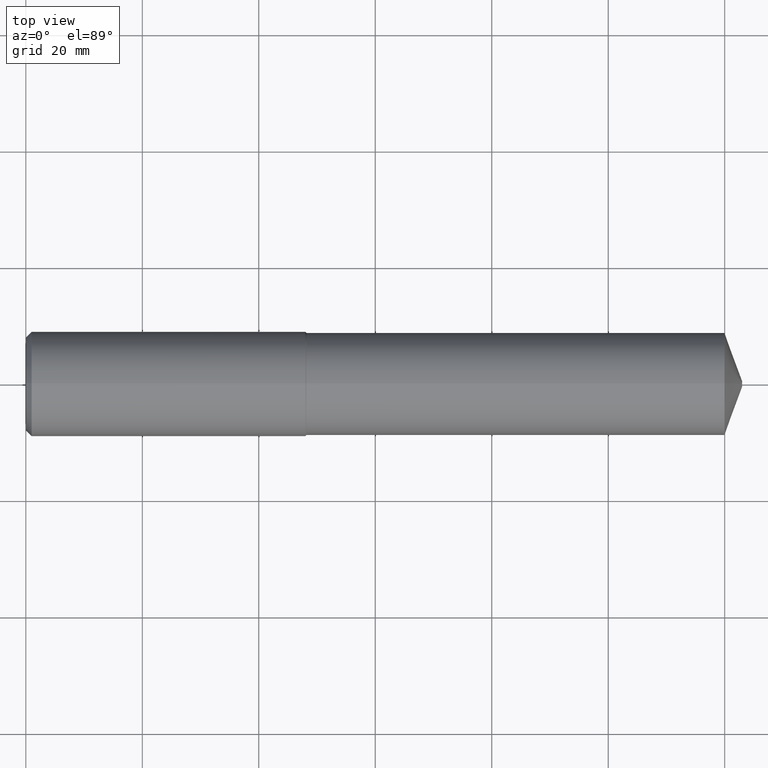
[diagram: clean part render]
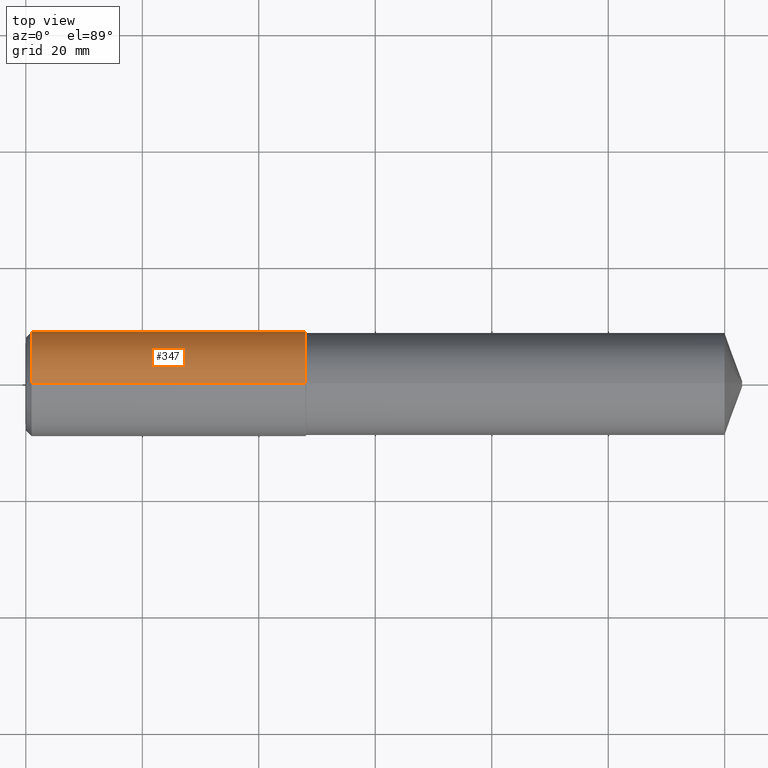
[diagram: same view with one face highlighted and labeled with its STEP entity id]
A machine part, top view. The second image highlights one B-rep face of the part: STEP entity #347.
In plain terms, the highlighted cylindrical surface (partial cylindrical patch) has radius 9 mm, axis along (1, -0, -0).
Its self-contained STEP definition (entity closure, byte-faithful):
#1 = CIRCLE ( 'NONE', #323, 0.3543307086614175261 ) ;
#19 = AXIS2_PLACEMENT_3D ( 'NONE', #101, #166, #277 ) ;
#22 = VERTEX_POINT ( 'NONE', #150 ) ;
#27 = EDGE_CURVE ( 'NONE', #200, #22, #96, .T. ) ;
#96 = LINE ( 'NONE', #263, #344 ) ;
#99 = DIRECTION ( 'NONE',  ( 1.000000000000000000, -0.000000000000000000, -0.000000000000000000 ) ) ;
#101 = CARTESIAN_POINT ( 'NONE',  ( -0.03808593750000075634, 0.000000000000000000, 0.000000000000000000 ) ) ;
#105 = CARTESIAN_POINT ( 'NONE',  ( -0.03808593750000075634, 0.000000000000000000, -0.3543307086614173596 ) ) ;
#114 = EDGE_LOOP ( 'NONE', ( #276, #136, #331, #194 ) ) ;
#119 = EDGE_CURVE ( 'NONE', #144, #200, #142, .T. ) ;
#123 = CARTESIAN_POINT ( 'NONE',  ( 0.03937007874015747977, 0.000000000000000000, 0.000000000000000000 ) ) ;
#127 = VECTOR ( 'NONE', #99, 39.37007874015748143 ) ;
#136 = ORIENTED_EDGE ( 'NONE', *, *, #27, .T. ) ;
#139 = CYLINDRICAL_SURFACE ( 'NONE', #19, 0.3543307086614173596 ) ;
#142 = CIRCLE ( 'NONE', #191, 0.3543307086614172485 ) ;
#144 = VERTEX_POINT ( 'NONE', #321 ) ;
#150 = CARTESIAN_POINT ( 'NONE',  ( 1.889763779527559251, 0.000000000000000000, 0.3543307086614175261 ) ) ;
#154 = DIRECTION ( 'NONE',  ( 1.000000000000000000, -0.000000000000000000, -0.000000000000000000 ) ) ;
#165 = VERTEX_POINT ( 'NONE', #240 ) ;
#166 = DIRECTION ( 'NONE',  ( 1.000000000000000000, -0.000000000000000000, -0.000000000000000000 ) ) ;
#187 = DIRECTION ( 'NONE',  ( 0.000000000000000000, 0.000000000000000000, -1.000000000000000000 ) ) ;
#191 = AXIS2_PLACEMENT_3D ( 'NONE', #123, #292, #187 ) ;
#193 = DIRECTION ( 'NONE',  ( 0.000000000000000000, 0.000000000000000000, -1.000000000000000000 ) ) ;
#194 = ORIENTED_EDGE ( 'NONE', *, *, #316, .F. ) ;
#195 = DIRECTION ( 'NONE',  ( 1.000000000000000000, -0.000000000000000000, -0.000000000000000000 ) ) ;
#200 = VERTEX_POINT ( 'NONE', #253 ) ;
#210 = EDGE_CURVE ( 'NONE', #165, #22, #1, .T. ) ;
#222 = CARTESIAN_POINT ( 'NONE',  ( 1.889763779527559251, 0.000000000000000000, 0.000000000000000000 ) ) ;
#240 = CARTESIAN_POINT ( 'NONE',  ( 1.889763779527559251, 4.339299682018183145E-17, -0.3543307086614175261 ) ) ;
#253 = CARTESIAN_POINT ( 'NONE',  ( 0.03937007874015747977, 4.339299682018180063E-17, 0.3543307086614172485 ) ) ;
#263 = CARTESIAN_POINT ( 'NONE',  ( -0.03808593750000075634, 4.339299682018181296E-17, 0.3543307086614173596 ) ) ;
#276 = ORIENTED_EDGE ( 'NONE', *, *, #119, .T. ) ;
#277 = DIRECTION ( 'NONE',  ( 0.000000000000000000, 0.000000000000000000, -1.000000000000000000 ) ) ;
#283 = LINE ( 'NONE', #105, #127 ) ;
#292 = DIRECTION ( 'NONE',  ( 1.000000000000000000, -0.000000000000000000, -0.000000000000000000 ) ) ;
#316 = EDGE_CURVE ( 'NONE', #144, #165, #283, .T. ) ;
#321 = CARTESIAN_POINT ( 'NONE',  ( 0.03937007874015747977, 0.000000000000000000, -0.3543307086614172485 ) ) ;
#323 = AXIS2_PLACEMENT_3D ( 'NONE', #222, #195, #193 ) ;
#331 = ORIENTED_EDGE ( 'NONE', *, *, #210, .F. ) ;
#344 = VECTOR ( 'NONE', #154, 39.37007874015748143 ) ;
#347 = ADVANCED_FACE ( 'NONE', ( #364 ), #139, .T. ) ;
#364 = FACE_OUTER_BOUND ( 'NONE', #114, .T. ) ;